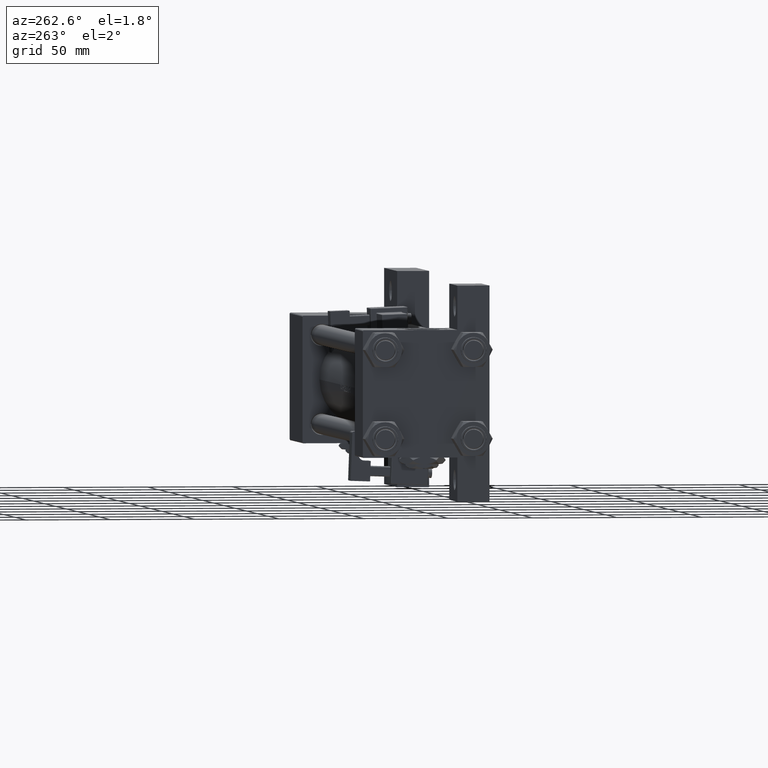
[diagram: clean part render]
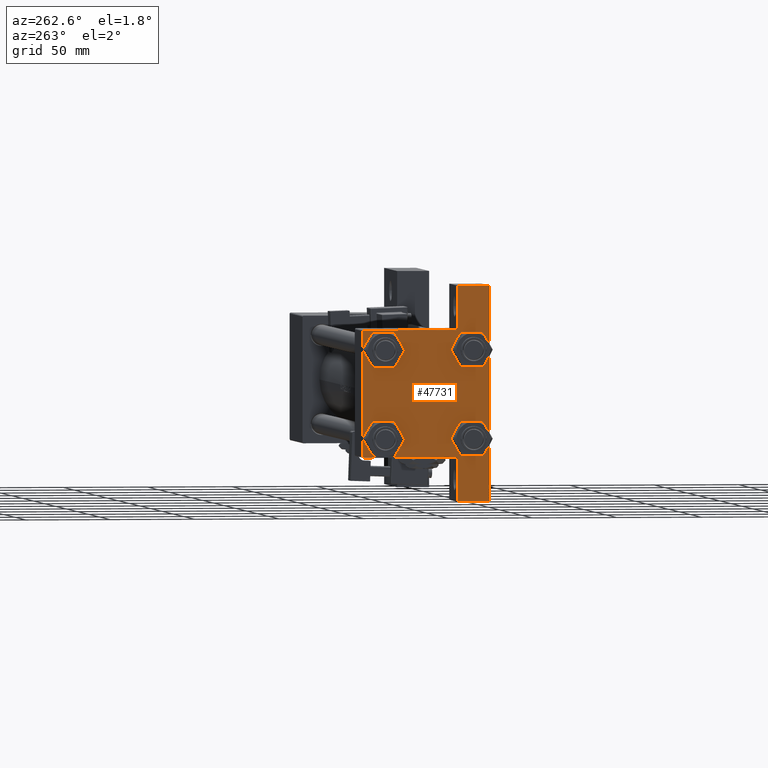
[diagram: same view with one face highlighted and labeled with its STEP entity id]
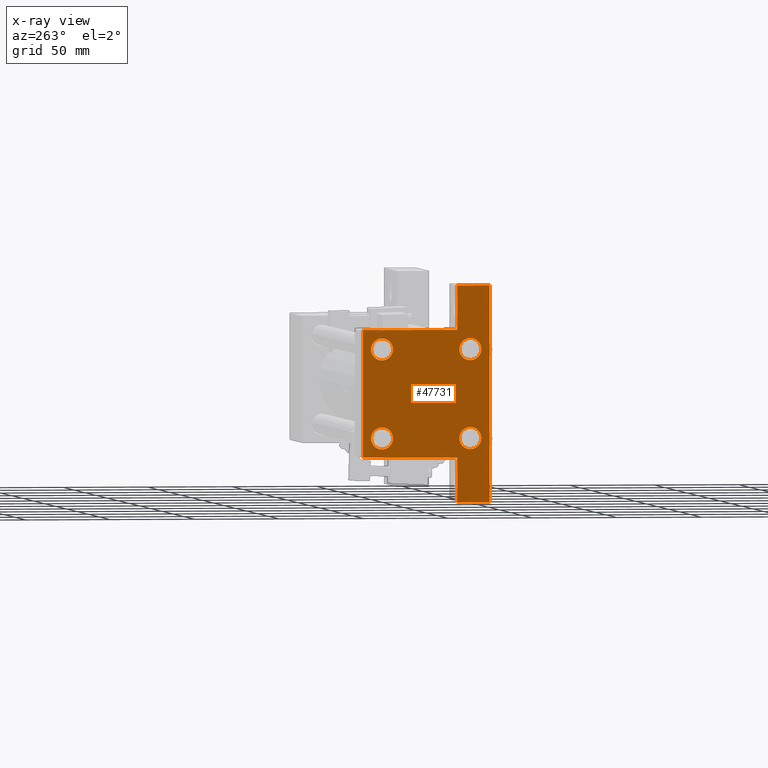
[diagram: x-ray of the same camera — body ghosted, the highlighted face saturated]
A machine part, auxiliary view. The second image highlights one B-rep face of the part: STEP entity #47731.
The next image is the same camera in x-ray: the body ghosted, the highlighted face saturated — about 0% of this face is hidden behind the body in this view.
In plain terms, the highlighted planar face has unit normal (-1, 0, -0).
Its self-contained STEP definition (entity closure, byte-faithful):
#121 = EDGE_CURVE ( 'NONE', #34064, #293, #28263, .T. ) ;
#163 = ORIENTED_EDGE ( 'NONE', *, *, #22612, .T. ) ;
#293 = VERTEX_POINT ( 'NONE', #51209 ) ;
#301 = VECTOR ( 'NONE', #39475, 1000.000000000000000 ) ;
#587 = VERTEX_POINT ( 'NONE', #17093 ) ;
#688 = LINE ( 'NONE', #16789, #20193 ) ;
#1032 = DIRECTION ( 'NONE',  ( 0.000000000000000000, -1.734723475976806848E-16, -1.000000000000000000 ) ) ;
#1445 = ORIENTED_EDGE ( 'NONE', *, *, #45873, .T. ) ;
#1817 = CARTESIAN_POINT ( 'NONE',  ( 0.000000000000000000, 37.49999999999999289, -18.49999999999999645 ) ) ;
#2152 = CIRCLE ( 'NONE', #35014, 6.500000000000015987 ) ;
#2566 = EDGE_CURVE ( 'NONE', #3809, #3875, #20962, .T. ) ;
#3098 = CARTESIAN_POINT ( 'NONE',  ( 0.000000000000000000, 0.000000000000000000, 0.000000000000000000 ) ) ;
#3100 = AXIS2_PLACEMENT_3D ( 'NONE', #39330, #35628, #51764 ) ;
#3294 = ORIENTED_EDGE ( 'NONE', *, *, #39672, .T. ) ;
#3425 = ORIENTED_EDGE ( 'NONE', *, *, #50323, .T. ) ;
#3662 = VERTEX_POINT ( 'NONE', #5526 ) ;
#3809 = VERTEX_POINT ( 'NONE', #39797 ) ;
#3875 = VERTEX_POINT ( 'NONE', #32648 ) ;
#3962 = DIRECTION ( 'NONE',  ( 0.000000000000000000, -1.000000000000000000, -9.251858538542972814E-17 ) ) ;
#3972 = EDGE_CURVE ( 'NONE', #21704, #34102, #27202, .T. ) ;
#4176 = AXIS2_PLACEMENT_3D ( 'NONE', #44467, #16442, #20673 ) ;
#5498 = DIRECTION ( 'NONE',  ( 0.000000000000000000, -1.000000000000000000, -9.251858538542971581E-17 ) ) ;
#5526 = CARTESIAN_POINT ( 'NONE',  ( -7.145701223179004046E-16, -37.50000000000000711, -18.50000000000000355 ) ) ;
#5682 = CARTESIAN_POINT ( 'NONE',  ( 0.000000000000000000, -26.14999999999999147, -26.15000000000000924 ) ) ;
#5696 = CARTESIAN_POINT ( 'NONE',  ( 0.000000000000000000, 26.14999999999999858, 32.65000000000002700 ) ) ;
#6024 = CARTESIAN_POINT ( 'NONE',  ( 0.000000000000000000, 26.14999999999999858, 19.64999999999998437 ) ) ;
#6044 = CARTESIAN_POINT ( 'NONE',  ( 3.977209754999747208E-16, -63.49999999999998579, 26.72167621838007889 ) ) ;
#6255 = ORIENTED_EDGE ( 'NONE', *, *, #8362, .F. ) ;
#6513 = CIRCLE ( 'NONE', #3100, 6.500000000000023093 ) ;
#6672 = VERTEX_POINT ( 'NONE', #24972 ) ;
#6682 = VECTOR ( 'NONE', #38335, 1000.000000000000000 ) ;
#6929 = ORIENTED_EDGE ( 'NONE', *, *, #22684, .T. ) ;
#6950 = EDGE_LOOP ( 'NONE', ( #25720, #31743 ) ) ;
#7306 = CARTESIAN_POINT ( 'NONE',  ( 1.595073532467135441E-14, 63.50000000000001421, 26.72167621838005047 ) ) ;
#7859 = FACE_BOUND ( 'NONE', #32345, .T. ) ;
#8070 = CARTESIAN_POINT ( 'NONE',  ( 0.000000000000000000, 26.14999999999999858, 26.15000000000000213 ) ) ;
#8358 = EDGE_CURVE ( 'NONE', #3875, #3809, #26952, .T. ) ;
#8362 = EDGE_CURVE ( 'NONE', #14364, #3662, #36767, .T. ) ;
#8758 = VERTEX_POINT ( 'NONE', #6024 ) ;
#8960 = CARTESIAN_POINT ( 'NONE',  ( 1.595073532467135441E-14, 63.50000000000000000, -37.50000000000002132 ) ) ;
#9030 = VERTEX_POINT ( 'NONE', #5696 ) ;
#9930 = EDGE_LOOP ( 'NONE', ( #40534, #3294 ) ) ;
#9964 = DIRECTION ( 'NONE',  ( 0.000000000000000000, 0.000000000000000000, -1.000000000000000000 ) ) ;
#9980 = CARTESIAN_POINT ( 'NONE',  ( 0.000000000000000000, 37.49999999999999289, 37.50000000000000000 ) ) ;
#10133 = VECTOR ( 'NONE', #32817, 1000.000000000000000 ) ;
#10182 = ORIENTED_EDGE ( 'NONE', *, *, #35630, .F. ) ;
#11311 = PLANE ( 'NONE',  #18351 ) ;
#13671 = LINE ( 'NONE', #9980, #41003 ) ;
#13866 = DIRECTION ( 'NONE',  ( 1.000000000000000000, -0.000000000000000000, 0.000000000000000000 ) ) ;
#14364 = VERTEX_POINT ( 'NONE', #23944 ) ;
#14835 = CARTESIAN_POINT ( 'NONE',  ( 0.000000000000000000, -26.14999999999999147, 26.15000000000000924 ) ) ;
#16430 = VERTEX_POINT ( 'NONE', #39033 ) ;
#16442 = DIRECTION ( 'NONE',  ( 1.000000000000000000, -0.000000000000000000, 0.000000000000000000 ) ) ;
#16704 = CARTESIAN_POINT ( 'NONE',  ( 0.000000000000000000, -37.50000000000000711, 37.49999999999999289 ) ) ;
#16789 = CARTESIAN_POINT ( 'NONE',  ( -0.000000000000000000, -37.25000000000000000, 37.25000000000000000 ) ) ;
#17066 = AXIS2_PLACEMENT_3D ( 'NONE', #8070, #45035, #20982 ) ;
#17077 = CIRCLE ( 'NONE', #29757, 6.500000000000023093 ) ;
#17093 = CARTESIAN_POINT ( 'NONE',  ( 0.000000000000000000, 36.99999999999999289, 37.50000000000000000 ) ) ;
#17707 = DIRECTION ( 'NONE',  ( 0.000000000000000000, 0.000000000000000000, 1.000000000000000000 ) ) ;
#18235 = CARTESIAN_POINT ( 'NONE',  ( 0.000000000000000000, 26.14999999999999858, -26.15000000000000213 ) ) ;
#18351 = AXIS2_PLACEMENT_3D ( 'NONE', #3098, #51720, #27403 ) ;
#18685 = DIRECTION ( 'NONE',  ( 1.000000000000000000, -0.000000000000000000, 0.000000000000000000 ) ) ;
#18690 = CARTESIAN_POINT ( 'NONE',  ( 0.000000000000000000, -26.14999999999999147, -26.15000000000000924 ) ) ;
#18920 = LINE ( 'NONE', #34760, #19210 ) ;
#19210 = VECTOR ( 'NONE', #9964, 1000.000000000000000 ) ;
#20193 = VECTOR ( 'NONE', #49028, 1000.000000000000114 ) ;
#20464 = CIRCLE ( 'NONE', #40711, 6.500000000000015987 ) ;
#20542 = ORIENTED_EDGE ( 'NONE', *, *, #43332, .T. ) ;
#20673 = DIRECTION ( 'NONE',  ( 0.000000000000000000, 0.000000000000000000, 1.000000000000000000 ) ) ;
#20962 = CIRCLE ( 'NONE', #31069, 6.500000000000015987 ) ;
#20982 = DIRECTION ( 'NONE',  ( 0.000000000000000000, 0.000000000000000000, 1.000000000000000000 ) ) ;
#21492 = EDGE_CURVE ( 'NONE', #8758, #9030, #50134, .T. ) ;
#21704 = VERTEX_POINT ( 'NONE', #44297 ) ;
#21983 = VERTEX_POINT ( 'NONE', #47659 ) ;
#22297 = AXIS2_PLACEMENT_3D ( 'NONE', #35048, #18685, #30310 ) ;
#22612 = EDGE_CURVE ( 'NONE', #14364, #6672, #688, .T. ) ;
#22684 = EDGE_CURVE ( 'NONE', #587, #34880, #43184, .T. ) ;
#23173 = DIRECTION ( 'NONE',  ( 0.000000000000000000, 0.000000000000000000, 1.000000000000000000 ) ) ;
#23191 = FACE_BOUND ( 'NONE', #50877, .T. ) ;
#23313 = CARTESIAN_POINT ( 'NONE',  ( 0.000000000000000000, 37.49999999999999289, 37.00000000000000000 ) ) ;
#23418 = DIRECTION ( 'NONE',  ( 0.000000000000000000, -1.734723475976806848E-16, -1.000000000000000000 ) ) ;
#23944 = CARTESIAN_POINT ( 'NONE',  ( 0.000000000000000000, -37.50000000000000711, 36.99999999999999289 ) ) ;
#24036 = VERTEX_POINT ( 'NONE', #26252 ) ;
#24820 = ORIENTED_EDGE ( 'NONE', *, *, #48648, .T. ) ;
#24972 = CARTESIAN_POINT ( 'NONE',  ( 0.000000000000000000, -37.00000000000000711, 37.49999999999999289 ) ) ;
#25466 = ORIENTED_EDGE ( 'NONE', *, *, #121, .T. ) ;
#25720 = ORIENTED_EDGE ( 'NONE', *, *, #2566, .T. ) ;
#26213 = DIRECTION ( 'NONE',  ( 0.000000000000000000, 0.000000000000000000, 1.000000000000000000 ) ) ;
#26252 = CARTESIAN_POINT ( 'NONE',  ( 0.000000000000000000, -26.14999999999999147, -19.64999999999999503 ) ) ;
#26884 = VERTEX_POINT ( 'NONE', #32595 ) ;
#26952 = CIRCLE ( 'NONE', #4176, 6.500000000000015987 ) ;
#26984 = DIRECTION ( 'NONE',  ( 1.000000000000000000, -0.000000000000000000, 0.000000000000000000 ) ) ;
#27202 = LINE ( 'NONE', #43333, #6682 ) ;
#27403 = DIRECTION ( 'NONE',  ( -0.000000000000000000, 0.000000000000000000, 1.000000000000000000 ) ) ;
#27641 = DIRECTION ( 'NONE',  ( 1.000000000000000000, -0.000000000000000000, 0.000000000000000000 ) ) ;
#28263 = LINE ( 'NONE', #36954, #37760 ) ;
#28364 = LINE ( 'NONE', #36027, #301 ) ;
#29396 = VECTOR ( 'NONE', #23418, 1000.000000000000000 ) ;
#29534 = EDGE_CURVE ( 'NONE', #9030, #8758, #42388, .T. ) ;
#29757 = AXIS2_PLACEMENT_3D ( 'NONE', #14835, #26984, #26213 ) ;
#30310 = DIRECTION ( 'NONE',  ( 0.000000000000000000, 0.000000000000000000, 1.000000000000000000 ) ) ;
#30647 = ORIENTED_EDGE ( 'NONE', *, *, #36201, .F. ) ;
#31069 = AXIS2_PLACEMENT_3D ( 'NONE', #18235, #41483, #17707 ) ;
#31325 = CARTESIAN_POINT ( 'NONE',  ( 3.977209754999747208E-16, -63.50000000000000000, -18.50000000000000355 ) ) ;
#31333 = VERTEX_POINT ( 'NONE', #31325 ) ;
#31743 = ORIENTED_EDGE ( 'NONE', *, *, #8358, .T. ) ;
#32345 = EDGE_LOOP ( 'NONE', ( #20542, #3425 ) ) ;
#32595 = CARTESIAN_POINT ( 'NONE',  ( 0.000000000000000000, -26.14999999999999147, -32.65000000000002700 ) ) ;
#32648 = CARTESIAN_POINT ( 'NONE',  ( 0.000000000000000000, 26.14999999999999858, -32.65000000000001990 ) ) ;
#32817 = DIRECTION ( 'NONE',  ( 0.000000000000000000, 9.251858538542971581E-17, -1.000000000000000000 ) ) ;
#33328 = ORIENTED_EDGE ( 'NONE', *, *, #21492, .T. ) ;
#34064 = VERTEX_POINT ( 'NONE', #8960 ) ;
#34102 = VERTEX_POINT ( 'NONE', #1817 ) ;
#34760 = CARTESIAN_POINT ( 'NONE',  ( 0.000000000000000000, 37.49999999999999289, 37.50000000000000000 ) ) ;
#34880 = VERTEX_POINT ( 'NONE', #23313 ) ;
#35014 = AXIS2_PLACEMENT_3D ( 'NONE', #5682, #13866, #45826 ) ;
#35048 = CARTESIAN_POINT ( 'NONE',  ( 0.000000000000000000, 26.14999999999999858, 26.15000000000000213 ) ) ;
#35628 = DIRECTION ( 'NONE',  ( 1.000000000000000000, -0.000000000000000000, 0.000000000000000000 ) ) ;
#35630 = EDGE_CURVE ( 'NONE', #3662, #31333, #28364, .T. ) ;
#35855 = FACE_BOUND ( 'NONE', #9930, .T. ) ;
#36027 = CARTESIAN_POINT ( 'NONE',  ( 3.977209754999744250E-16, -63.49999999999998579, -18.50000000000000355 ) ) ;
#36201 = EDGE_CURVE ( 'NONE', #31333, #293, #37204, .T. ) ;
#36767 = LINE ( 'NONE', #16704, #10133 ) ;
#36954 = CARTESIAN_POINT ( 'NONE',  ( 0.000000000000000000, 37.49999999999999289, -37.50000000000000000 ) ) ;
#37204 = LINE ( 'NONE', #6044, #48411 ) ;
#37483 = EDGE_LOOP ( 'NONE', ( #6255, #163, #41406, #6929, #24820, #43465, #1445, #25466, #30647, #10182 ) ) ;
#37760 = VECTOR ( 'NONE', #3962, 1000.000000000000000 ) ;
#38335 = DIRECTION ( 'NONE',  ( -2.877097866686192789E-16, -1.000000000000000000, 0.000000000000000000 ) ) ;
#39033 = CARTESIAN_POINT ( 'NONE',  ( 0.000000000000000000, -26.14999999999999147, 32.65000000000003411 ) ) ;
#39330 = CARTESIAN_POINT ( 'NONE',  ( 0.000000000000000000, -26.14999999999999147, 26.15000000000000924 ) ) ;
#39475 = DIRECTION ( 'NONE',  ( 4.278042683914906889E-17, -1.000000000000000000, 0.000000000000000000 ) ) ;
#39672 = EDGE_CURVE ( 'NONE', #26884, #24036, #2152, .T. ) ;
#39797 = CARTESIAN_POINT ( 'NONE',  ( 0.000000000000000000, 26.14999999999999858, -19.64999999999998792 ) ) ;
#40534 = ORIENTED_EDGE ( 'NONE', *, *, #50639, .T. ) ;
#40711 = AXIS2_PLACEMENT_3D ( 'NONE', #18690, #27641, #23173 ) ;
#41003 = VECTOR ( 'NONE', #5498, 1000.000000000000000 ) ;
#41406 = ORIENTED_EDGE ( 'NONE', *, *, #41715, .F. ) ;
#41483 = DIRECTION ( 'NONE',  ( 1.000000000000000000, -0.000000000000000000, 0.000000000000000000 ) ) ;
#41715 = EDGE_CURVE ( 'NONE', #587, #6672, #13671, .T. ) ;
#42388 = CIRCLE ( 'NONE', #17066, 6.500000000000023093 ) ;
#42992 = VECTOR ( 'NONE', #47670, 1000.000000000000114 ) ;
#43184 = LINE ( 'NONE', #43961, #42992 ) ;
#43204 = ORIENTED_EDGE ( 'NONE', *, *, #29534, .T. ) ;
#43332 = EDGE_CURVE ( 'NONE', #16430, #21983, #6513, .T. ) ;
#43333 = CARTESIAN_POINT ( 'NONE',  ( 1.595073532467135757E-14, 63.50000000000001421, -18.50000000000000355 ) ) ;
#43465 = ORIENTED_EDGE ( 'NONE', *, *, #3972, .F. ) ;
#43504 = LINE ( 'NONE', #7306, #29396 ) ;
#43961 = CARTESIAN_POINT ( 'NONE',  ( 0.000000000000000000, 37.24999999999999289, 37.24999999999999289 ) ) ;
#44049 = FACE_OUTER_BOUND ( 'NONE', #37483, .T. ) ;
#44297 = CARTESIAN_POINT ( 'NONE',  ( 1.595073532467135441E-14, 63.50000000000000000, -18.50000000000000355 ) ) ;
#44467 = CARTESIAN_POINT ( 'NONE',  ( 0.000000000000000000, 26.14999999999999858, -26.15000000000000213 ) ) ;
#45035 = DIRECTION ( 'NONE',  ( 1.000000000000000000, -0.000000000000000000, 0.000000000000000000 ) ) ;
#45826 = DIRECTION ( 'NONE',  ( 0.000000000000000000, 0.000000000000000000, 1.000000000000000000 ) ) ;
#45873 = EDGE_CURVE ( 'NONE', #21704, #34064, #43504, .T. ) ;
#47485 = FACE_BOUND ( 'NONE', #6950, .T. ) ;
#47659 = CARTESIAN_POINT ( 'NONE',  ( 0.000000000000000000, -26.14999999999999147, 19.64999999999999147 ) ) ;
#47670 = DIRECTION ( 'NONE',  ( 0.000000000000000000, 0.7071067811865474617, -0.7071067811865474617 ) ) ;
#47731 = ADVANCED_FACE ( 'NONE', ( #7859, #35855, #47485, #23191, #44049 ), #11311, .T. ) ;
#48411 = VECTOR ( 'NONE', #1032, 1000.000000000000000 ) ;
#48648 = EDGE_CURVE ( 'NONE', #34880, #34102, #18920, .T. ) ;
#49028 = DIRECTION ( 'NONE',  ( -0.000000000000000000, 0.7071067811865474617, 0.7071067811865474617 ) ) ;
#50134 = CIRCLE ( 'NONE', #22297, 6.500000000000023093 ) ;
#50323 = EDGE_CURVE ( 'NONE', #21983, #16430, #17077, .T. ) ;
#50639 = EDGE_CURVE ( 'NONE', #24036, #26884, #20464, .T. ) ;
#50877 = EDGE_LOOP ( 'NONE', ( #43204, #33328 ) ) ;
#51209 = CARTESIAN_POINT ( 'NONE',  ( 3.977209754999747208E-16, -63.50000000000000000, -37.49999999999999289 ) ) ;
#51720 = DIRECTION ( 'NONE',  ( -1.000000000000000000, 0.000000000000000000, -0.000000000000000000 ) ) ;
#51764 = DIRECTION ( 'NONE',  ( 0.000000000000000000, 0.000000000000000000, 1.000000000000000000 ) ) ;